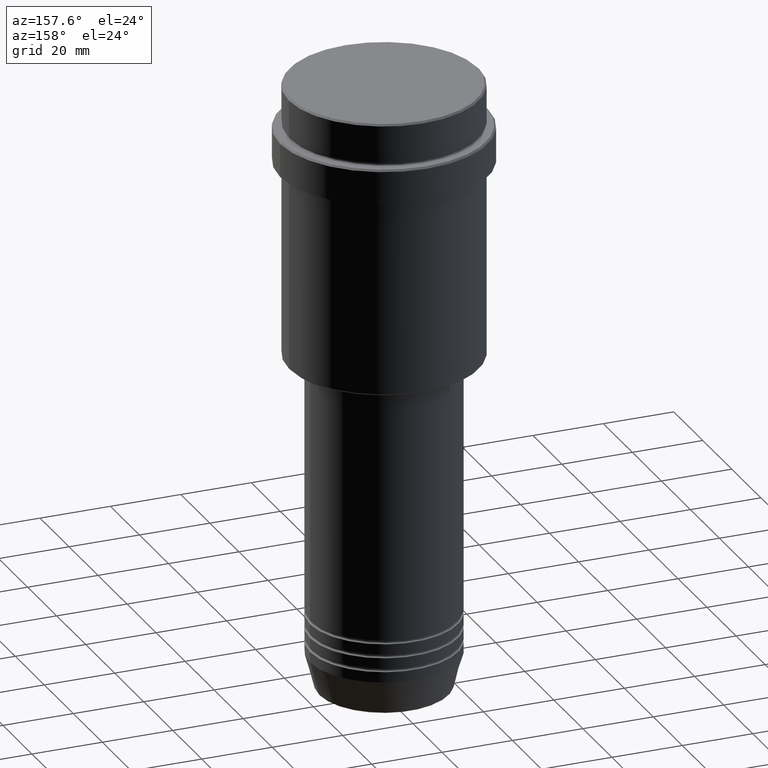
[diagram: clean part render]
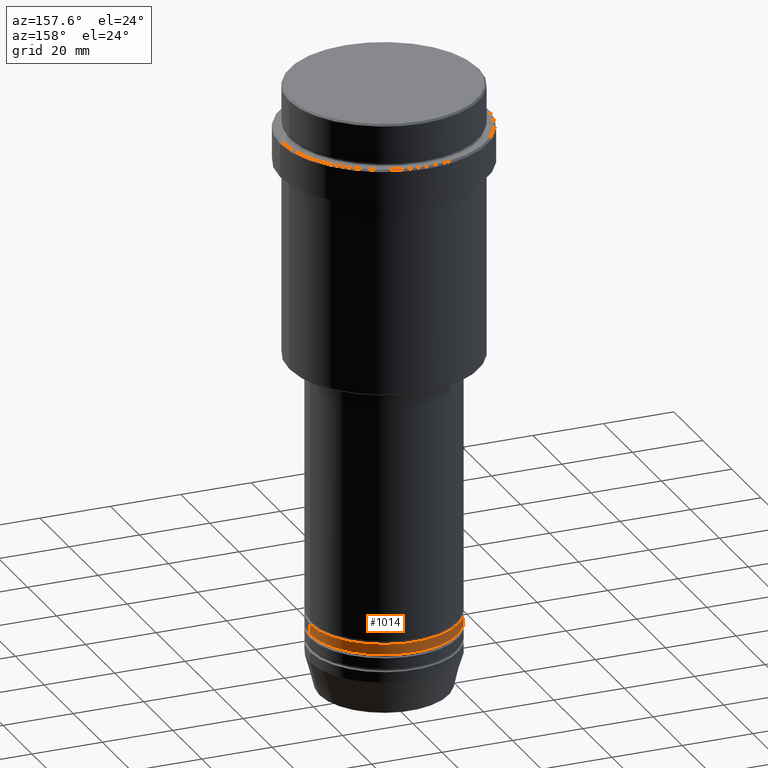
[diagram: same view with one face highlighted and labeled with its STEP entity id]
A machine part, auxiliary view. The second image highlights one B-rep face of the part: STEP entity #1014.
In plain terms, the highlighted cylindrical surface (partial cylindrical patch) has radius 21 mm, axis along (-0, -0, 1).
Its self-contained STEP definition (entity closure, byte-faithful):
#4 = DIRECTION ( 'NONE',  ( -0.000000000000000000, -0.000000000000000000, 1.000000000000000000 ) ) ;
#59 = CARTESIAN_POINT ( 'NONE',  ( 21.00000000000000000, 0.000000000000000000, -151.9999999999998579 ) ) ;
#66 = EDGE_CURVE ( 'NONE', #405, #1181, #1125, .T. ) ;
#98 = AXIS2_PLACEMENT_3D ( 'NONE', #1394, #291, #305 ) ;
#100 = DIRECTION ( 'NONE',  ( 1.000000000000000000, 0.000000000000000000, 0.000000000000000000 ) ) ;
#103 = DIRECTION ( 'NONE',  ( -0.000000000000000000, -0.000000000000000000, 1.000000000000000000 ) ) ;
#187 = DIRECTION ( 'NONE',  ( -0.000000000000000000, -0.000000000000000000, 1.000000000000000000 ) ) ;
#191 = CARTESIAN_POINT ( 'NONE',  ( 0.000000000000000000, 0.000000000000000000, -154.9999999999998579 ) ) ;
#233 = CARTESIAN_POINT ( 'NONE',  ( -21.00000000000000000, 2.571758278209441661E-15, -154.9999999999998579 ) ) ;
#284 = VERTEX_POINT ( 'NONE', #1349 ) ;
#291 = DIRECTION ( 'NONE',  ( -0.000000000000000000, -0.000000000000000000, 1.000000000000000000 ) ) ;
#305 = DIRECTION ( 'NONE',  ( 1.000000000000000000, 0.000000000000000000, 0.000000000000000000 ) ) ;
#344 = AXIS2_PLACEMENT_3D ( 'NONE', #1269, #187, #1163 ) ;
#391 = CARTESIAN_POINT ( 'NONE',  ( 21.00000000000000000, 0.000000000000000000, 0.000000000000000000 ) ) ;
#405 = VERTEX_POINT ( 'NONE', #1389 ) ;
#411 = ORIENTED_EDGE ( 'NONE', *, *, #1348, .T. ) ;
#441 = VERTEX_POINT ( 'NONE', #59 ) ;
#505 = FACE_OUTER_BOUND ( 'NONE', #748, .T. ) ;
#546 = CIRCLE ( 'NONE', #344, 21.00000000000000000 ) ;
#582 = CARTESIAN_POINT ( 'NONE',  ( -21.00000000000000000, 2.571758278209441661E-15, 0.000000000000000000 ) ) ;
#708 = VECTOR ( 'NONE', #1150, 1000.000000000000000 ) ;
#748 = EDGE_LOOP ( 'NONE', ( #831, #411, #1347, #823 ) ) ;
#823 = ORIENTED_EDGE ( 'NONE', *, *, #925, .F. ) ;
#831 = ORIENTED_EDGE ( 'NONE', *, *, #66, .T. ) ;
#841 = LINE ( 'NONE', #391, #1123 ) ;
#925 = EDGE_CURVE ( 'NONE', #405, #441, #841, .T. ) ;
#1014 = ADVANCED_FACE ( 'NONE', ( #505 ), #1387, .T. ) ;
#1049 = AXIS2_PLACEMENT_3D ( 'NONE', #191, #4, #100 ) ;
#1123 = VECTOR ( 'NONE', #103, 1000.000000000000000 ) ;
#1125 = CIRCLE ( 'NONE', #1049, 21.00000000000000000 ) ;
#1150 = DIRECTION ( 'NONE',  ( -0.000000000000000000, -0.000000000000000000, 1.000000000000000000 ) ) ;
#1163 = DIRECTION ( 'NONE',  ( 1.000000000000000000, 0.000000000000000000, 0.000000000000000000 ) ) ;
#1181 = VERTEX_POINT ( 'NONE', #233 ) ;
#1255 = LINE ( 'NONE', #582, #708 ) ;
#1269 = CARTESIAN_POINT ( 'NONE',  ( 0.000000000000000000, 0.000000000000000000, -151.9999999999998579 ) ) ;
#1347 = ORIENTED_EDGE ( 'NONE', *, *, #1396, .F. ) ;
#1348 = EDGE_CURVE ( 'NONE', #1181, #284, #1255, .T. ) ;
#1349 = CARTESIAN_POINT ( 'NONE',  ( -21.00000000000000000, 2.571758278209441661E-15, -151.9999999999998579 ) ) ;
#1387 = CYLINDRICAL_SURFACE ( 'NONE', #98, 21.00000000000000000 ) ;
#1389 = CARTESIAN_POINT ( 'NONE',  ( 21.00000000000000000, 0.000000000000000000, -154.9999999999998579 ) ) ;
#1394 = CARTESIAN_POINT ( 'NONE',  ( 0.000000000000000000, 0.000000000000000000, 0.000000000000000000 ) ) ;
#1396 = EDGE_CURVE ( 'NONE', #441, #284, #546, .T. ) ;